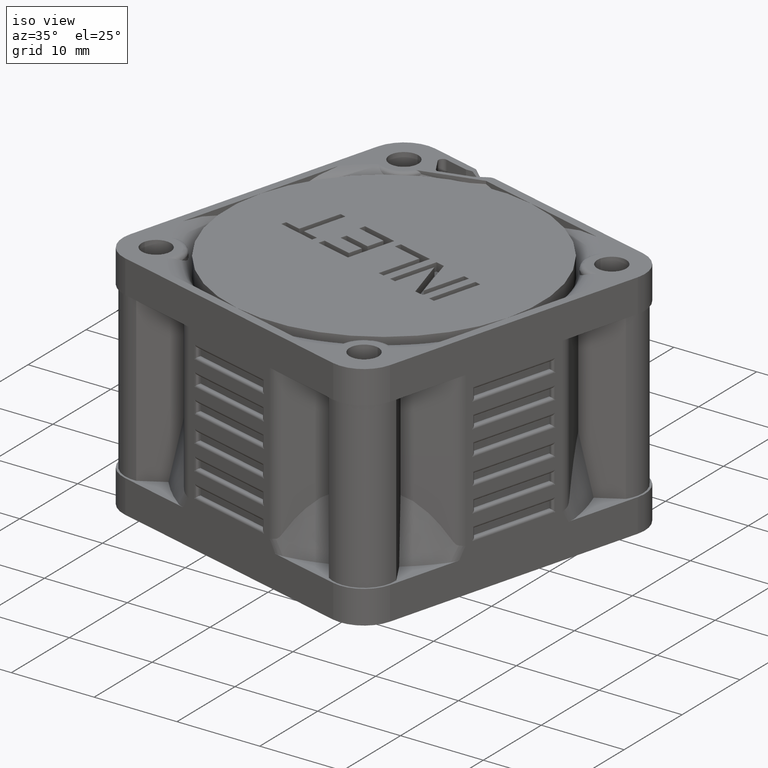
[diagram: clean part render]
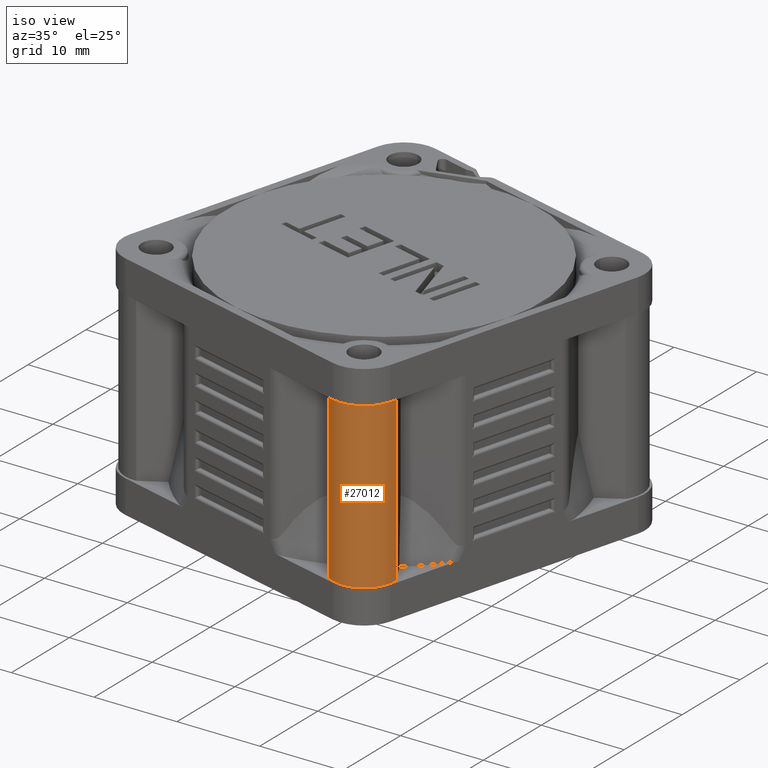
[diagram: same view with one face highlighted and labeled with its STEP entity id]
A machine part, iso view. The second image highlights one B-rep face of the part: STEP entity #27012.
In plain terms, the highlighted cylindrical surface (partial cylindrical patch) has radius 3.75 mm, axis along (0, 0, 1).
Its self-contained STEP definition (entity closure, byte-faithful):
#244=CARTESIAN_POINT('',(1.131370849898E1,-1.959591794227E1,2.4E1));
#245=DIRECTION('',(0.E0,0.E0,-1.E0));
#246=DIRECTION('',(9.983459096968E-1,5.749299602187E-2,0.E0));
#247=AXIS2_PLACEMENT_3D('',#244,#245,#246);
#249=CARTESIAN_POINT('',(1.131370849898E1,-1.959591794227E1,2.4E1));
#250=DIRECTION('',(0.E0,0.E0,-1.E0));
#251=DIRECTION('',(0.E0,-1.E0,0.E0));
#252=AXIS2_PLACEMENT_3D('',#249,#250,#251);
#5842=CARTESIAN_POINT('',(1.131370849898E1,-1.959591794227E1,4.E0));
#5843=DIRECTION('',(0.E0,0.E0,1.E0));
#5844=DIRECTION('',(-5.489617861107E-1,-8.358474486353E-1,0.E0));
#5845=AXIS2_PLACEMENT_3D('',#5842,#5843,#5844);
#5847=CARTESIAN_POINT('',(1.131370849898E1,-1.959591794227E1,4.E0));
#5848=DIRECTION('',(0.E0,0.E0,1.E0));
#5849=DIRECTION('',(0.E0,-1.E0,0.E0));
#5850=AXIS2_PLACEMENT_3D('',#5847,#5848,#5849);
#5917=DIRECTION('',(0.E0,0.E0,-1.E0));
#5918=VECTOR('',#5917,2.E1);
#5919=CARTESIAN_POINT('',(1.505750566035E1,-1.938031920720E1,2.4E1));
#5920=LINE('',#5919,#5918);
#5921=DIRECTION('',(3.437250484239E-14,-1.971756091734E-14,1.E0));
#5922=VECTOR('',#5921,2.E1);
#5923=CARTESIAN_POINT('',(9.255101801065E0,-2.273034587465E1,4.E0));
#5924=LINE('',#5923,#5922);
#11837=CARTESIAN_POINT('',(1.505750566035E1,-1.938031920720E1,2.4E1));
#11838=VERTEX_POINT('',#11837);
#11839=CARTESIAN_POINT('',(1.131370849898E1,-2.334591794227E1,2.4E1));
#11840=VERTEX_POINT('',#11839);
#11841=CARTESIAN_POINT('',(9.255101801067E0,-2.273034587465E1,2.4E1));
#11842=VERTEX_POINT('',#11841);
#12620=CARTESIAN_POINT('',(9.255101801065E0,-2.273034587465E1,4.E0));
#12621=VERTEX_POINT('',#12620);
#12622=CARTESIAN_POINT('',(1.131370849898E1,-2.334591794227E1,4.E0));
#12623=VERTEX_POINT('',#12622);
#12624=CARTESIAN_POINT('',(1.505750566034E1,-1.938031920719E1,4.E0));
#12625=VERTEX_POINT('',#12624);
#26998=CARTESIAN_POINT('',(1.131370849898E1,-1.959591794227E1,2.4E1));
#26999=DIRECTION('',(0.E0,0.E0,1.E0));
#27000=DIRECTION('',(0.E0,-1.E0,0.E0));
#27001=AXIS2_PLACEMENT_3D('',#26998,#26999,#27000);
#27002=CYLINDRICAL_SURFACE('',#27001,3.75E0);
#27003=ORIENTED_EDGE('',*,*,#14471,.F.);
#27005=ORIENTED_EDGE('',*,*,#27004,.T.);
#27006=ORIENTED_EDGE('',*,*,#26897,.F.);
#27007=ORIENTED_EDGE('',*,*,#26895,.F.);
#27008=ORIENTED_EDGE('',*,*,#26988,.T.);
#27009=ORIENTED_EDGE('',*,*,#14473,.F.);
#27010=EDGE_LOOP('',(#27003,#27005,#27006,#27007,#27008,#27009));
#27011=FACE_OUTER_BOUND('',#27010,.F.);
#27012=ADVANCED_FACE('',(#27011),#27002,.T.);
#248=CIRCLE('',#247,3.75E0);
#253=CIRCLE('',#252,3.75E0);
#5846=CIRCLE('',#5845,3.75E0);
#5851=CIRCLE('',#5850,3.75E0);
#14471=EDGE_CURVE('',#11838,#11840,#248,.T.);
#14473=EDGE_CURVE('',#11840,#11842,#253,.T.);
#26895=EDGE_CURVE('',#12621,#12623,#5846,.T.);
#26897=EDGE_CURVE('',#12623,#12625,#5851,.T.);
#26988=EDGE_CURVE('',#12621,#11842,#5924,.T.);
#27004=EDGE_CURVE('',#11838,#12625,#5920,.T.);